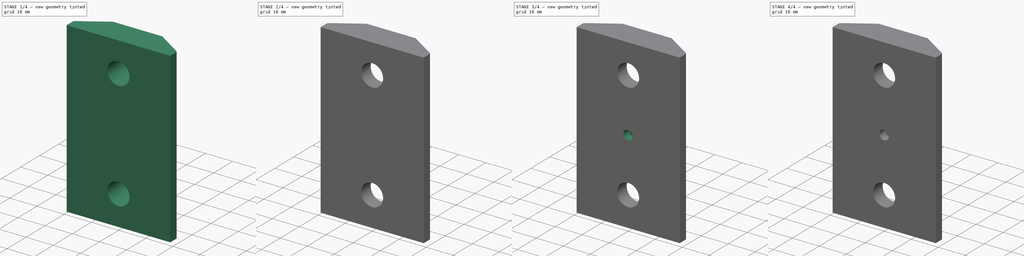
[diagram: build sequence overview — one tinted view per stage of 4, left to right]
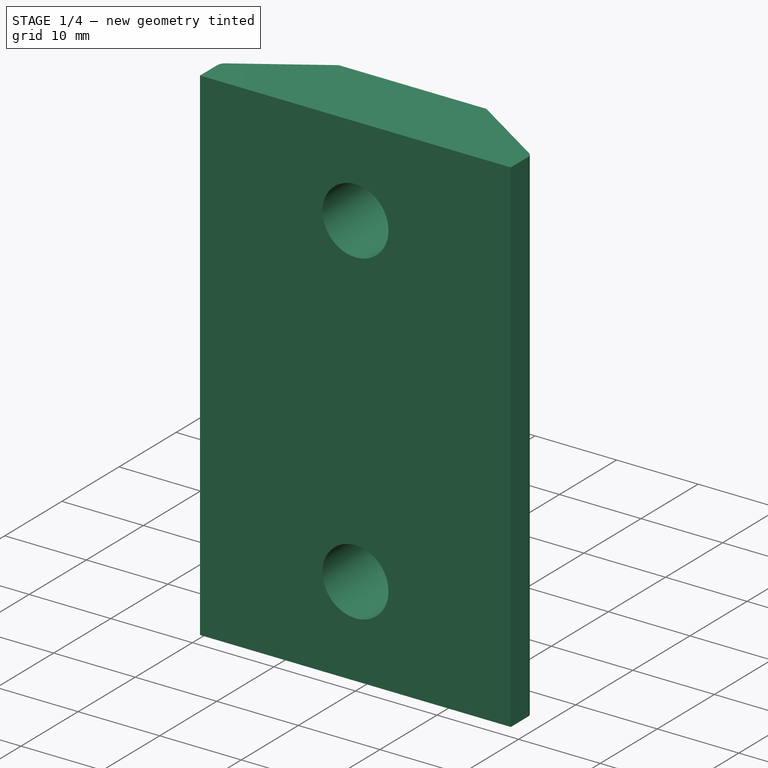
[diagram: stage 1 of 4 — iso view after this stage's code; geometry added in this stage tinted green]
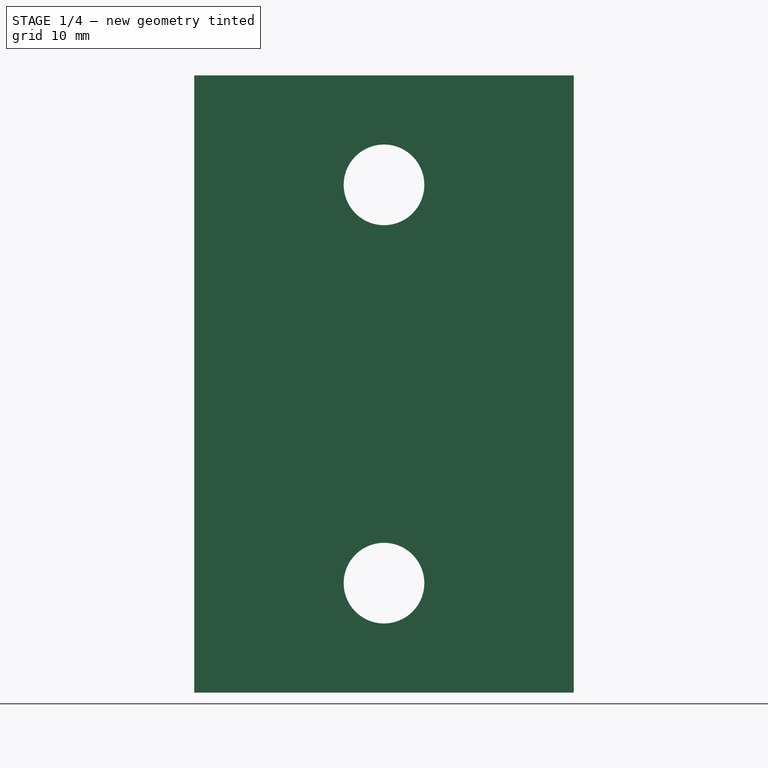
[diagram: stage 1 of 4 — front view after this stage's code; geometry added in this stage tinted green]
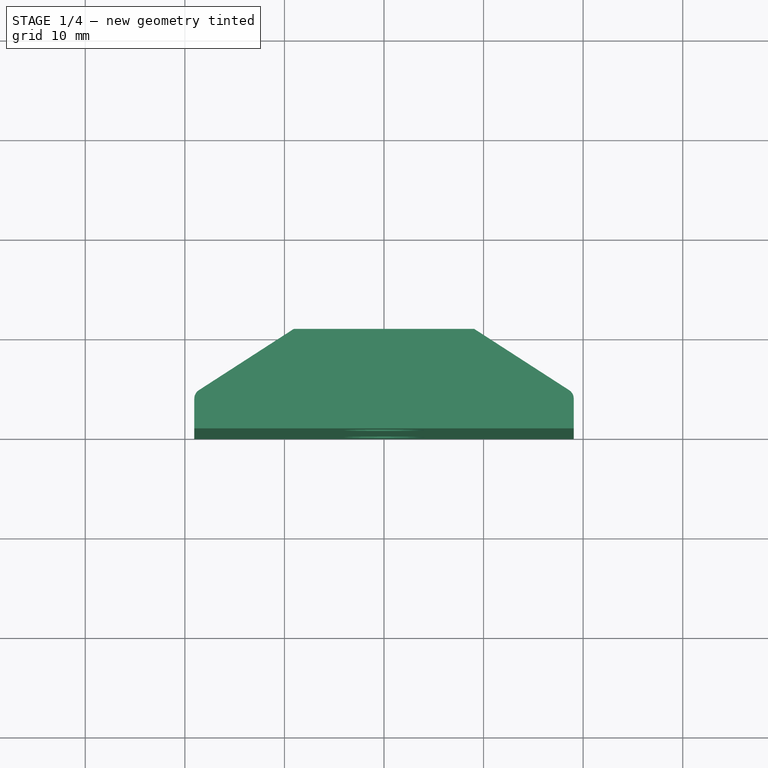
[diagram: stage 1 of 4 — top view after this stage's code; geometry added in this stage tinted green]
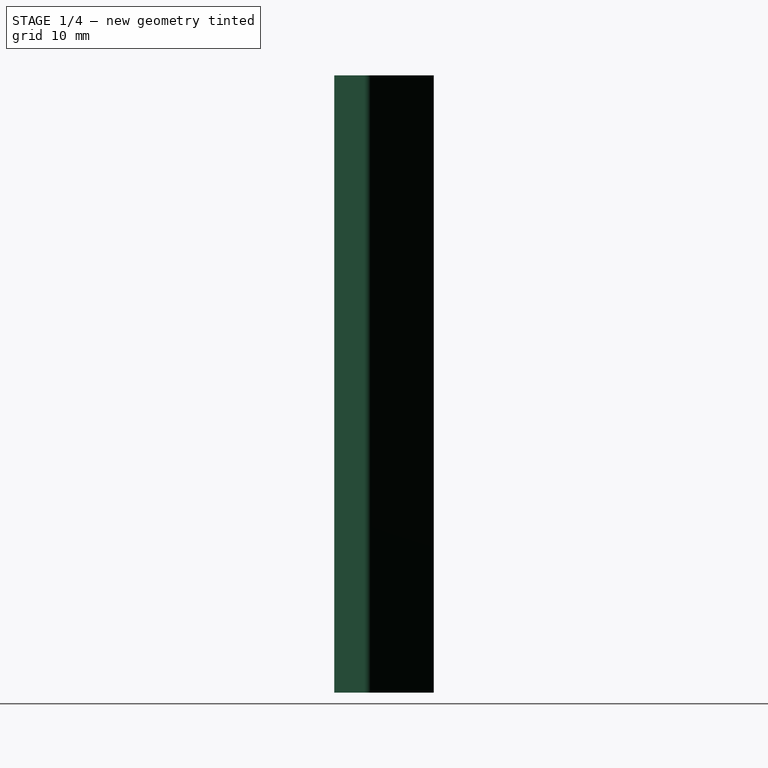
[diagram: stage 1 of 4 — right view after this stage's code; geometry added in this stage tinted green]
FCSTD DOCUMENT  (FreeCAD 0.18R)
Label: y-idler-mount-hz
License: All rights reserved
LicenseURL: http://en.wikipedia.org/wiki/All_rights_reserved
objects: Sketcher::SketchObject×8, PartDesign::Pocket×6, Part::Feature×3, PartDesign::Pad×2, PartDesign::Chamfer×1, PartDesign::Fillet×1, PartDesign::Body×1
note: 30 computed .brp shape members not serialized (recipe doc carries the construction recipe); baked Part::Feature solids carry a one-line shape summary decoded from their .brp

FEATURE [Part::Feature] _515_extrusion_160_000mm
  Placement = pos=(-146.05,-76.2,-80) rot=(0,0,1;0rad)
  shape: bbox 38.1 x 38.1 x 160 mm, 113 faces (baked)
FEATURE [Part::Feature] y_drive_belt
  Placement = pos=(88,204.5,185) rot=(0,1,0;1.5708rad)
  shape: bbox 385.6 x 6 x 15 mm, 10 faces (baked)
FEATURE [Part::Feature] y_idler_pulley
  Placement = pos=(0,12.5,-0.0305432) rot=(-1,0,0;1.5708rad)
  shape: bbox 13 x 8.6 x 13 mm, 8 faces (baked)
FEATURE [Sketcher::SketchObject] Sketch
  AttachmentOffset = pos=(0,0,31) rot=(0,0,1;0rad)
  MapMode = 5
  Placement = pos=(0,0,31) rot=(0,0,1;0rad)
  Support = -> [XY_Plane]
  sketch-geometry (8):
    g0: LineSegment StartX=-19.05 StartY=0 StartZ=0 EndX=19.05 EndY=0 EndZ=0
    g1: LineSegment StartX=-9.05 StartY=10 StartZ=0 EndX=9.05 EndY=10 EndZ=0
    g2: LineSegment StartX=-19.05 StartY=0 StartZ=0 EndX=-19.05 EndY=3 EndZ=0
    g3: LineSegment StartX=19.05 StartY=0 StartZ=0 EndX=19.05 EndY=3 EndZ=0
    g4: LineSegment StartX=9.05 StartY=10 StartZ=0 EndX=18.5923 EndY=3.84016 EndZ=0
    g5: LineSegment StartX=-9.05 StartY=10 StartZ=0 EndX=-18.5923 EndY=3.84016 EndZ=0
    g6: ArcOfCircle CenterX=-18.05 CenterY=3 CenterZ=0 NormalX=0 NormalY=0 NormalZ=1 AngleXU=0 Radius=1 StartAngle=2.14402 EndAngle=3.14159
    g7: ArcOfCircle CenterX=18.05 CenterY=3 CenterZ=0 NormalX=0 NormalY=0 NormalZ=1 AngleXU=0 Radius=1 StartAngle=0 EndAngle=0.997572
  constraints (22):
    c: Horizontal(g0)
    c: DistanceX(g0,g-1) = 19.05
    c: DistanceX(g-1,g0) = 19.05
    c: PointOnObject(g0,g-1)
    c: Horizontal(g1)
    c: DistanceY(g-1,g1) = 10
    c: DistanceX(g1,g0) = 10
    c: DistanceX(g0,g1) = 10
    c: Coincident(g2,g0)
    c: Vertical(g2)
    c: Coincident(g3,g0)
    c: Vertical(g3)
    c: Coincident(g4,g1)
    c: Coincident(g5,g1)
    c: Tangent(g5,g6) = -1.5708
    c: Tangent(g2,g6) = 1.5708
    c: Tangent(g4,g7) = 1.5708
    c: Tangent(g3,g7) = -1.5708
    c: DistanceY(g3,g3) = 3
    c: DistanceY(g2,g2) = 3
    c: DistanceX(g2,g6) = 1
    c: DistanceX(g7,g3) = 1
FEATURE [PartDesign::Pad] Pad
  Length = 62
  Length2 = 100
  Profile = -> Sketch
  Reversed = true
  Type = 0
FEATURE [Sketcher::SketchObject] Sketch001
  MapMode = 5
  Placement = pos=(0,0,0) rot=(1,0,0;1.5708rad)
  Support = -> [XZ_Plane]
  sketch-geometry (2):
    g0: Circle CenterX=0 CenterY=20 CenterZ=0 NormalX=0 NormalY=0 NormalZ=1 AngleXU=0 Radius=4.05
    g1: Circle CenterX=0 CenterY=-20 CenterZ=0 NormalX=0 NormalY=0 NormalZ=1 AngleXU=0 Radius=4.05
  constraints (6):
    c: PointOnObject(g0,g-2)
    c: Diameter(g0) = 8.1
    c: DistanceY(g-1,g0) = 20
    c: PointOnObject(g1,g-2)
    c: Equal(g0,g1)
    c: DistanceY(g1,g-1) = 20
FEATURE [PartDesign::Pocket] Pocket
  BaseFeature = -> Pad
  Length = 5
  Length2 = 100
  Profile = -> Sketch001
  Type = 1
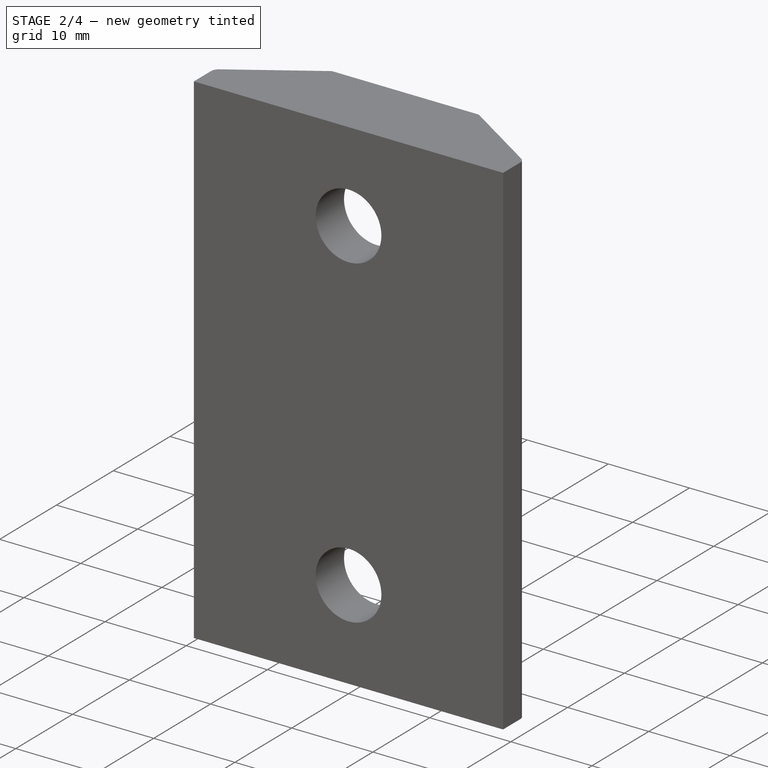
[diagram: stage 2 of 4 — iso view after this stage's code; geometry added in this stage tinted green]
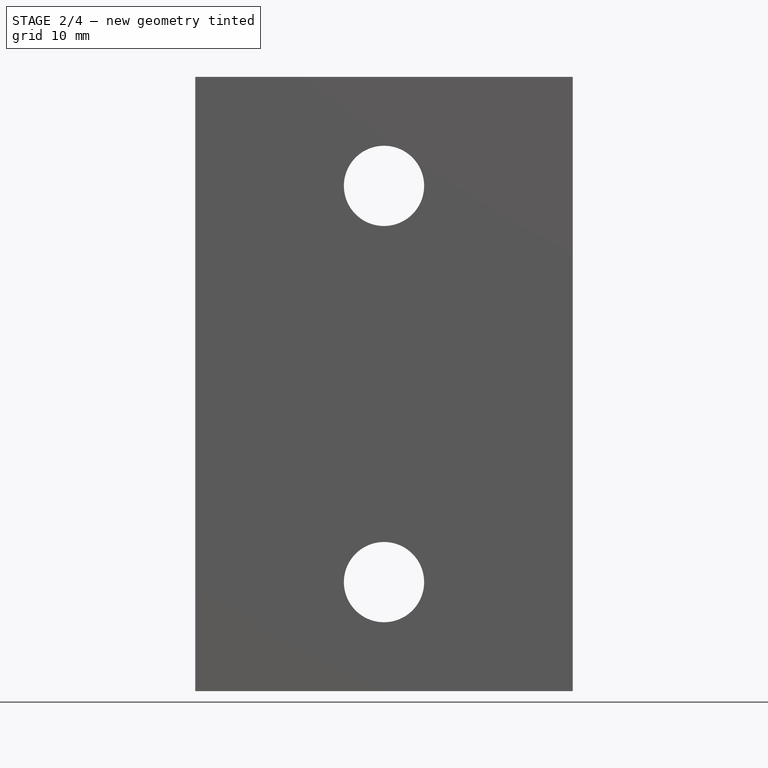
[diagram: stage 2 of 4 — front view after this stage's code; geometry added in this stage tinted green]
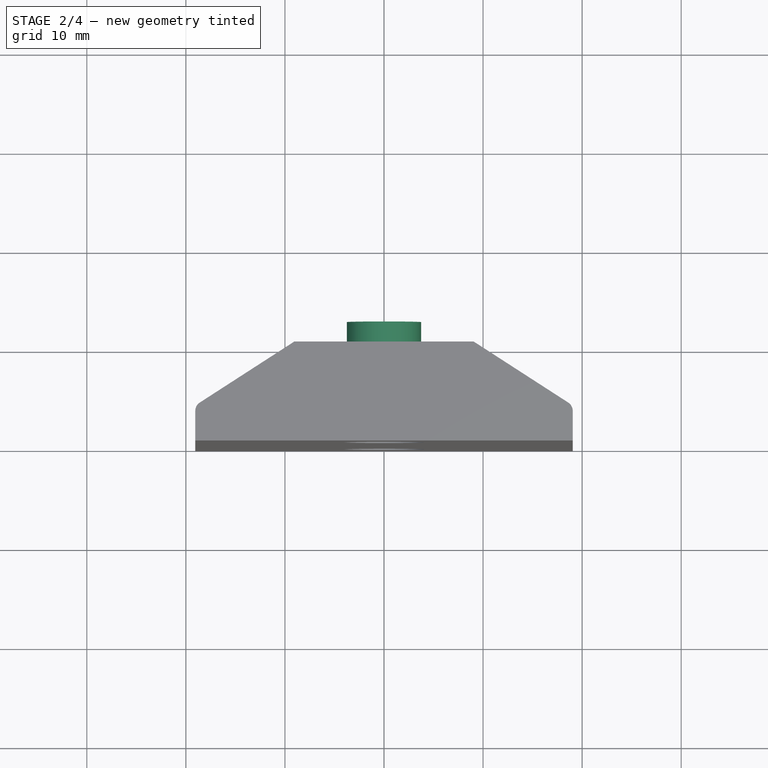
[diagram: stage 2 of 4 — top view after this stage's code; geometry added in this stage tinted green]
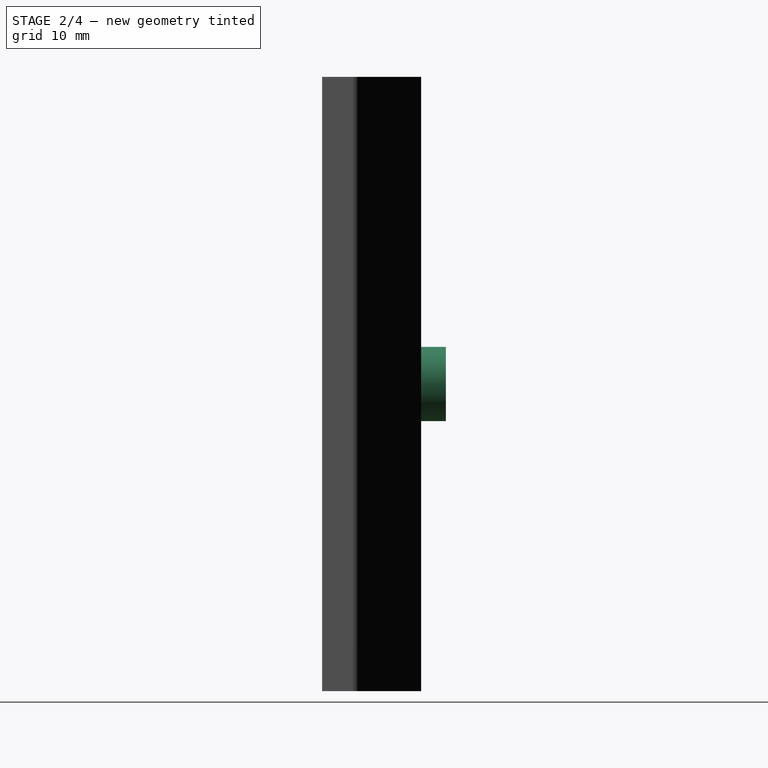
[diagram: stage 2 of 4 — right view after this stage's code; geometry added in this stage tinted green]
FEATURE [Sketcher::SketchObject] Sketch002
  AttachmentOffset = pos=(0,0,-10) rot=(0,0,1;0rad)
  MapMode = 5
  Placement = pos=(0,10,2.2e-15) rot=(1,0,0;1.5708rad)
  Support = -> [XZ_Plane]
  sketch-geometry (2):
    g0: Circle CenterX=0 CenterY=20 CenterZ=0 NormalX=0 NormalY=0 NormalZ=1 AngleXU=0 Radius=8.625
    g1: Circle CenterX=0 CenterY=-20 CenterZ=0 NormalX=0 NormalY=0 NormalZ=1 AngleXU=0 Radius=8.625
  constraints (6):
    c: PointOnObject(g0,g-2)
    c: PointOnObject(g1,g-2)
    c: Diameter(g0) = 17.25
    c: DistanceY(g-1,g0) = 20
    c: DistanceY(g1,g0) = 40
    c: Equal(g0,g1)
FEATURE [PartDesign::Pocket] Pocket001
  BaseFeature = -> Pocket
  Length = 5
  Length2 = 100
  Profile = -> Sketch002
  Reversed = true
  Type = 0
FEATURE [Sketcher::SketchObject] Sketch003
  AttachmentOffset = pos=(0,0,-10) rot=(0,0,1;0rad)
  MapMode = 5
  Placement = pos=(0,10,2.2e-15) rot=(1,0,0;1.5708rad)
  Support = -> [XZ_Plane]
  sketch-geometry (1):
    g0: Circle CenterX=0 CenterY=0 CenterZ=0 NormalX=0 NormalY=0 NormalZ=1 AngleXU=0 Radius=3.75
  constraints (2):
    c: Coincident(g0,g-1)
    c: Diameter(g0) = 7.5
FEATURE [PartDesign::Pad] Pad001
  BaseFeature = -> Pocket001
  Length = 2.5
  Length2 = 100
  Profile = -> Sketch003
  Reversed = true
  Type = 0
FEATURE [Sketcher::SketchObject] Sketch004
  AttachmentOffset = pos=(0,0,-12.5) rot=(0,0,1;0rad)
  MapMode = 5
  Placement = pos=(0,12.5,2.8e-15) rot=(1,0,0;1.5708rad)
  Support = -> [XZ_Plane]
  sketch-geometry (4):
    g0: LineSegment StartX=9 StartY=8.25 StartZ=0 EndX=-1.8e-15 EndY=8.25 EndZ=0
    g1: LineSegment StartX=-1.5e-15 StartY=-8.25 StartZ=0 EndX=9 EndY=-8.25 EndZ=0
    g2: LineSegment StartX=9 StartY=-8.25 StartZ=0 EndX=9 EndY=8.25 EndZ=0
    g3: ArcOfCircle CenterX=0 CenterY=0 CenterZ=0 NormalX=0 NormalY=0 NormalZ=1 AngleXU=0 Radius=8.25 StartAngle=1.5708 EndAngle=4.71239
  constraints (12):
    c: Horizontal(g0)
    c: Horizontal(g1)
    c: Coincident(g2,g1)
    c: Vertical(g2)
    c: Coincident(g0,g2)
    c: DistanceX(g-1,g0) = 9
    c: Coincident(g3,g-1)
    c: Diameter(g3) = 16.5
    c: Coincident(g3,g0)
    c: Coincident(g3,g1)
    c: PointOnObject(g0,g-2)
    c: PointOnObject(g1,g-2)
FEATURE [PartDesign::Pocket] Pocket002
  BaseFeature = -> Pad001
  Length = 8.6
  Length2 = 100
  Profile = -> Sketch004
  Type = 0
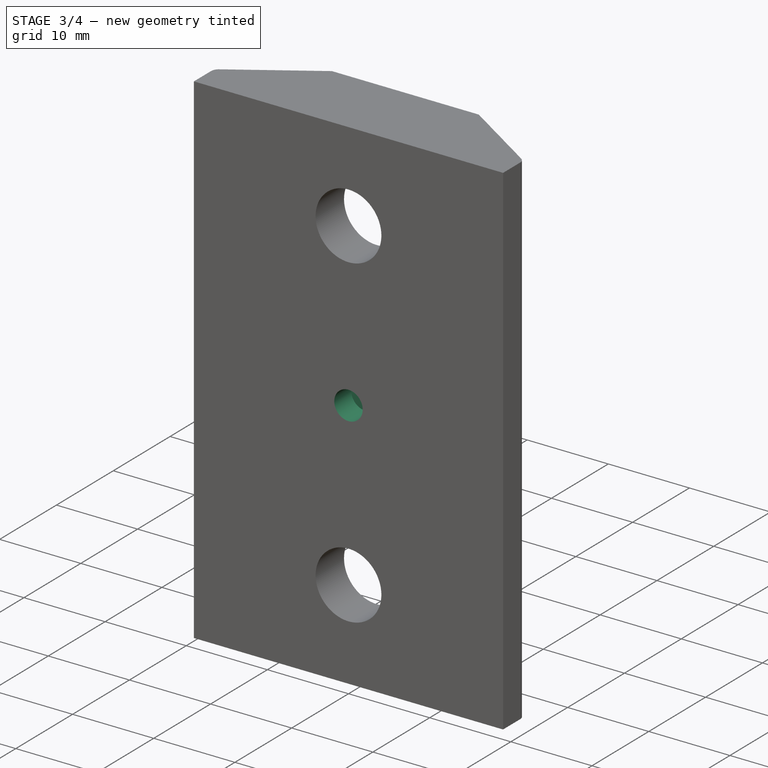
[diagram: stage 3 of 4 — iso view after this stage's code; geometry added in this stage tinted green]
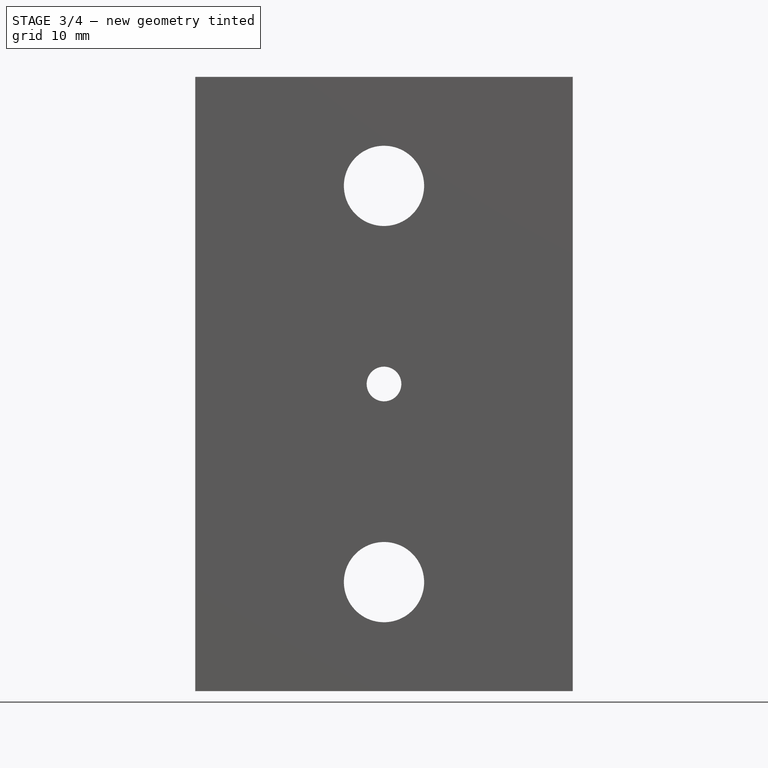
[diagram: stage 3 of 4 — front view after this stage's code; geometry added in this stage tinted green]
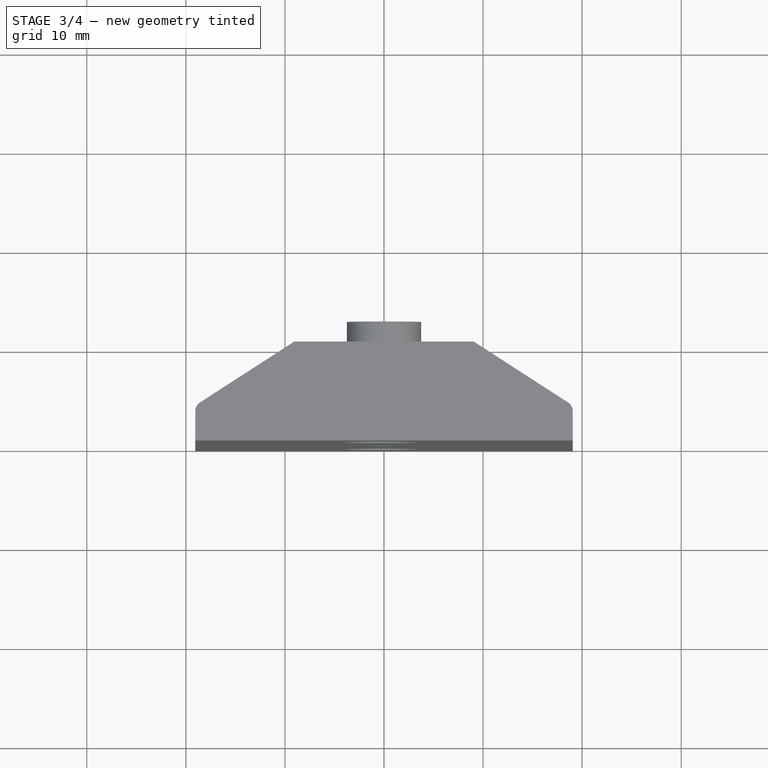
[diagram: stage 3 of 4 — top view after this stage's code; geometry added in this stage tinted green]
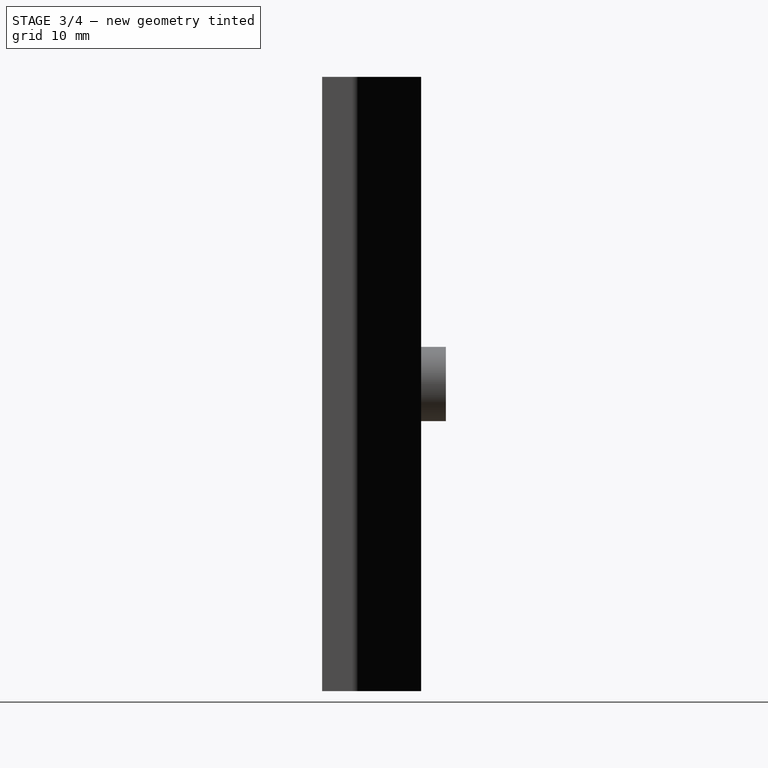
[diagram: stage 3 of 4 — right view after this stage's code; geometry added in this stage tinted green]
FEATURE [Sketcher::SketchObject] Sketch005
  MapMode = 5
  Placement = pos=(0,0,0) rot=(1,0,0;1.5708rad)
  Support = -> [XZ_Plane]
  sketch-geometry (1):
    g0: Circle CenterX=0 CenterY=0 CenterZ=0 NormalX=0 NormalY=0 NormalZ=1 AngleXU=0 Radius=1.75
  constraints (2):
    c: Coincident(g0,g-1)
    c: Diameter(g0) = 3.5
FEATURE [PartDesign::Pocket] Pocket003
  BaseFeature = -> Pocket002
  Length = 5
  Length2 = 100
  Profile = -> Sketch005
  Type = 1
FEATURE [Sketcher::SketchObject] Sketch006
  AttachmentOffset = pos=(0,0,-24.5) rot=(0,0,1;0rad)
  MapMode = 5
  Placement = pos=(0,24.5,5.4e-15) rot=(1,0,0;1.5708rad)
  Support = -> [XZ_Plane]
  sketch-geometry (1):
    g0: Circle CenterX=0 CenterY=0 CenterZ=0 NormalX=0 NormalY=0 NormalZ=1 AngleXU=0 Radius=3
  constraints (2):
    c: Coincident(g0,g-1)
    c: Diameter(g0) = 6
FEATURE [PartDesign::Pocket] Pocket004
  BaseFeature = -> Pocket003
  Length = 2
  Length2 = 100
  Profile = -> Sketch006
  Reversed = true
  Type = 0
FEATURE [Sketcher::SketchObject] Sketch007
  AttachmentOffset = pos=(0,0,-6) rot=(0,0,1;3.14159rad)
  MapMode = 5
  Placement = pos=(0,6,1.3e-15) rot=(0,-0.707107,0.707107;3.14159rad)
  Support = -> [XZ_Plane]
  sketch-geometry (8):
    g0: LineSegment StartX=2 StartY=3.4641 StartZ=0 EndX=-2 EndY=3.4641 EndZ=0
    g1: LineSegment StartX=-2 StartY=3.4641 StartZ=0 EndX=-4 EndY=-2.2e-15 EndZ=0
    g2: LineSegment StartX=-4 StartY=-2.2e-15 StartZ=0 EndX=-2 EndY=-3.4641 EndZ=0
    g3: LineSegment StartX=-2 StartY=-3.4641 StartZ=0 EndX=2 EndY=-3.4641 EndZ=0
    g4: Circle [constr] CenterX=0 CenterY=0 CenterZ=0 NormalX=0 NormalY=0 NormalZ=1 AngleXU=0 Radius=4
    g5: LineSegment StartX=2 StartY=3.4641 StartZ=0 EndX=19.1 EndY=3.4641 EndZ=0
    g6: LineSegment StartX=2 StartY=-3.4641 StartZ=0 EndX=19.1 EndY=-3.4641 EndZ=0
    g7: LineSegment StartX=19.1 StartY=-3.4641 StartZ=0 EndX=19.1 EndY=3.4641 EndZ=0
  constraints (23):
    c: Coincident(g0,g1)
    c: Coincident(g1,g2)
    c: Coincident(g2,g3)
    c: PointOnObject(g0,g4)
    c: PointOnObject(g0,g4)
    c: PointOnObject(g1,g4)
    c: PointOnObject(g2,g4)
    c: PointOnObject(g3,g4)
    c: Coincident(g4,g-1)
    c: DistanceX(g0,g0) = 4
    c: Horizontal(g0)
    c: Horizontal(g5)
    c: Coincident(g6,g3)
    c: Horizontal(g6)
    c: Coincident(g7,g6)
    c: Coincident(g7,g5)
    c: Vertical(g7)
    c: DistanceX(g-1,g5) = 19.1
    c: Distance(g1) = 4
    c: Horizontal(g3)
    c: Angle(g1,g0) = 2.0944
    c: Angle(g2,g1) = 2.0944
    c: Coincident(g0,g5)
FEATURE [PartDesign::Pocket] Pocket005
  BaseFeature = -> Pocket004
  Length = 3
  Length2 = 100
  Profile = -> Sketch007
  Reversed = true
  Type = 0
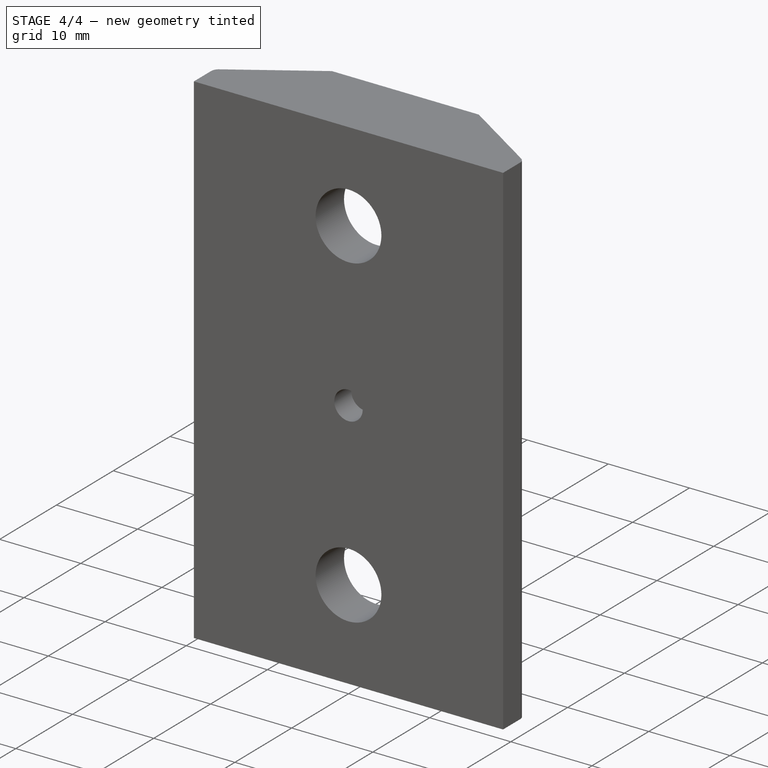
[diagram: stage 4 of 4 — iso view after this stage's code; geometry added in this stage tinted green]
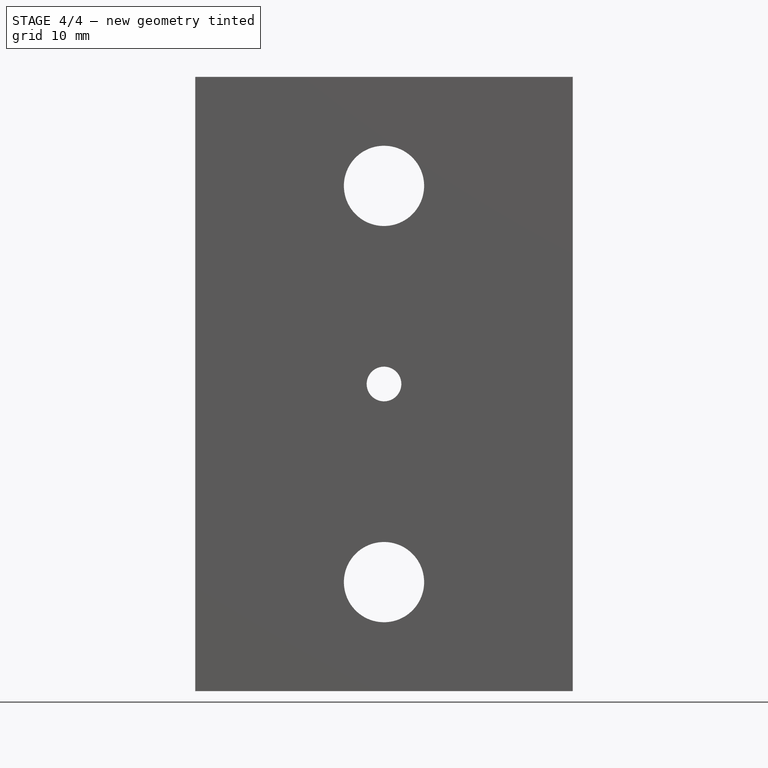
[diagram: stage 4 of 4 — front view after this stage's code; geometry added in this stage tinted green]
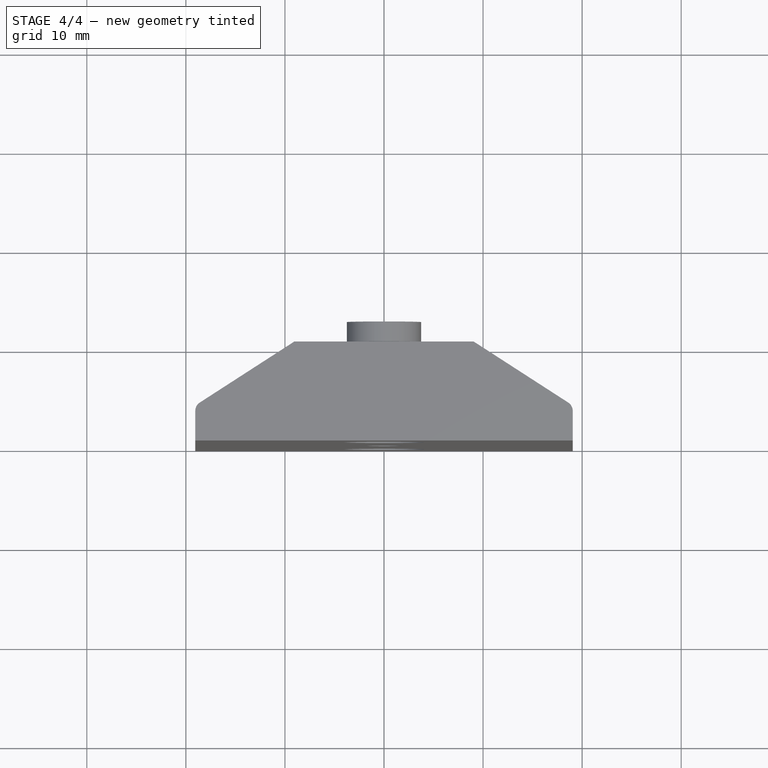
[diagram: stage 4 of 4 — top view after this stage's code; geometry added in this stage tinted green]
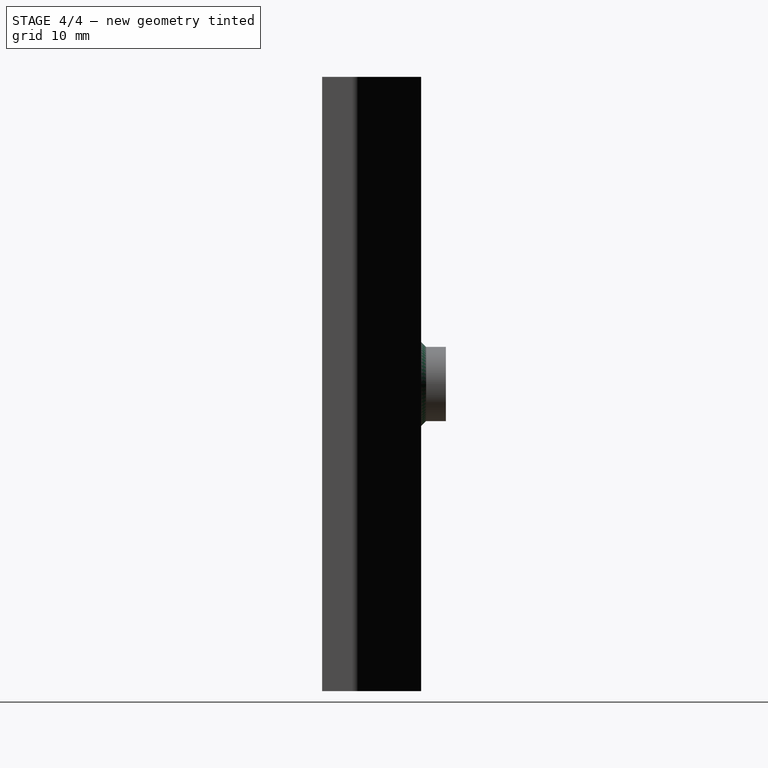
[diagram: stage 4 of 4 — right view after this stage's code; geometry added in this stage tinted green]
FEATURE [PartDesign::Chamfer] Chamfer
  Base = -> Pocket005 [Edge39]
  BaseFeature = -> Pocket005
  Size = 0.5
FEATURE [PartDesign::Fillet] Fillet
  Base = -> Chamfer [Edge7,Edge6]
  BaseFeature = -> Chamfer
  Radius = 0.5
FEATURE [PartDesign::Body] Body  label="y-idler-mount-hz"
  Group = -> [Sketch,Pad,Sketch001,Pocket,Sketch002,Pocket001,Sketch003,Pad001,Sketch004,Pocket002,Sketch005,Pocket003,Sketch006,Pocket004,Sketch007,Pocket005,Chamfer,Fillet]
  Origin = -> Origin
  Tip = -> Fillet
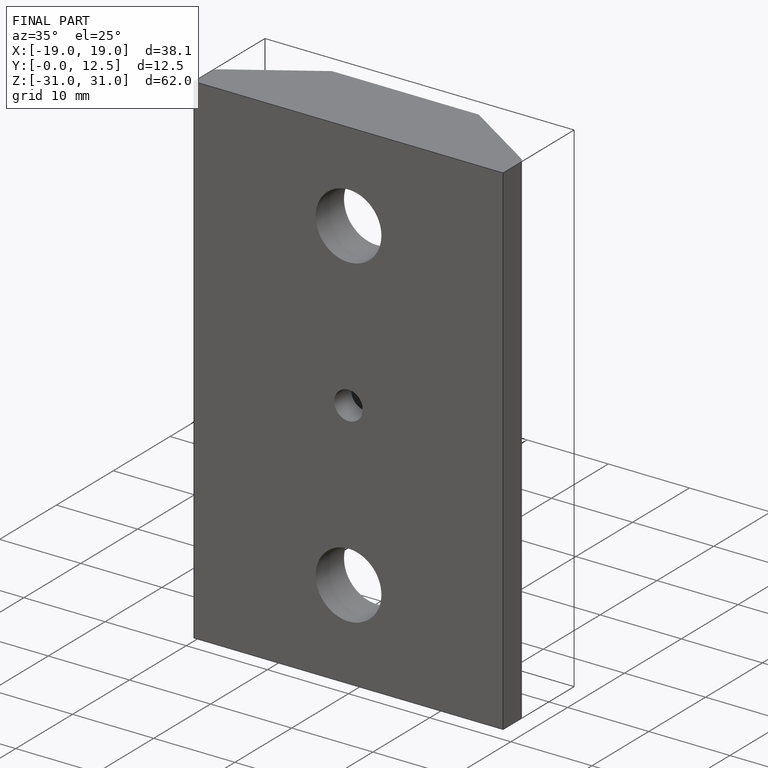
[diagram: finished part — iso view with bounding-box wireframe]
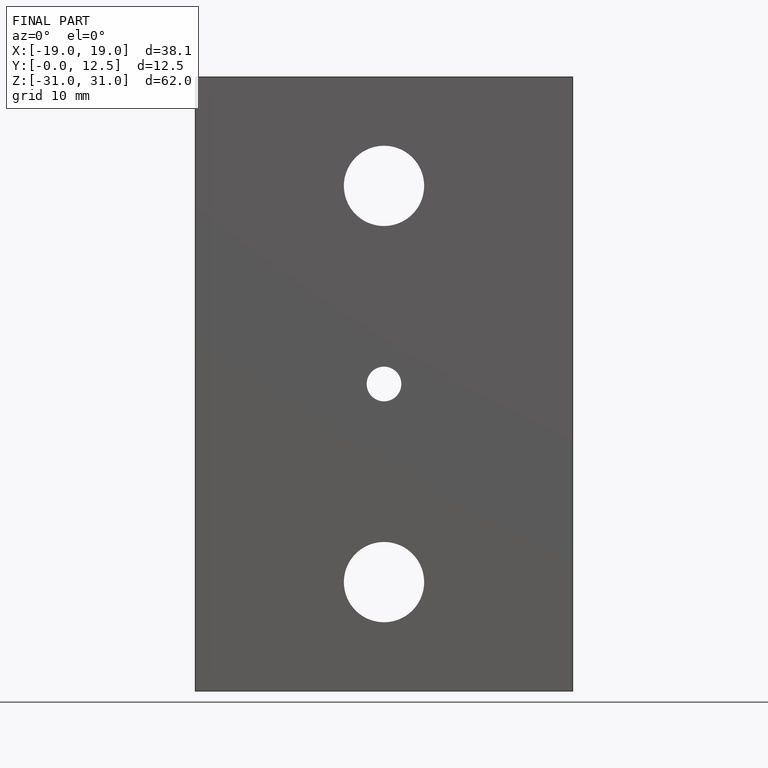
[diagram: finished part — front view with bounding-box wireframe]
